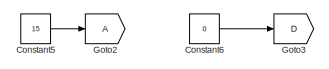
[diagram: root canvas - part 1/4, top center region]
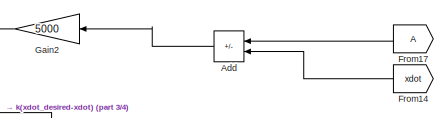
[diagram: root canvas - part 2/4, top center region]
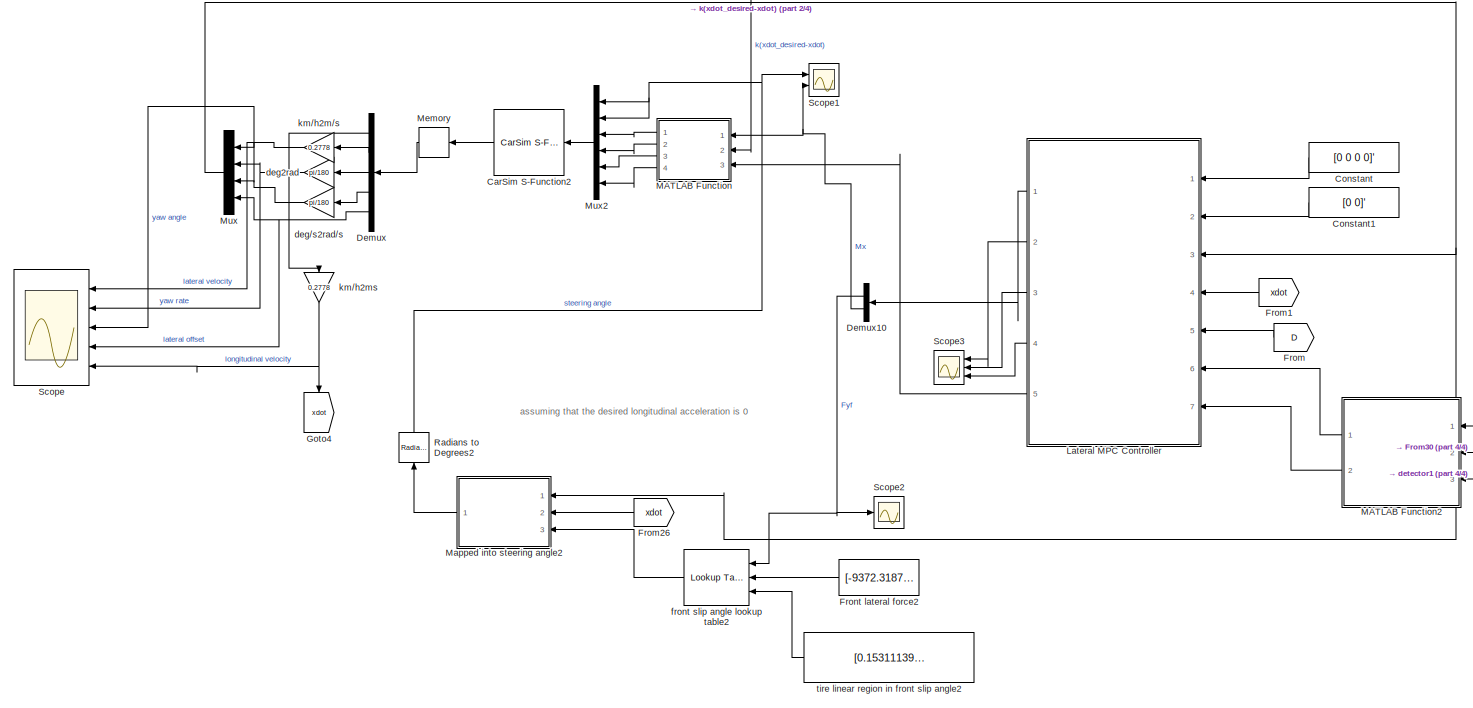
[diagram: root canvas - part 3/4, full width, middle band]
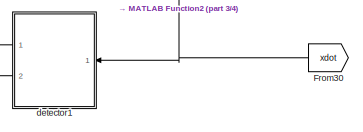
[diagram: root canvas - part 4/4, bottom right region]
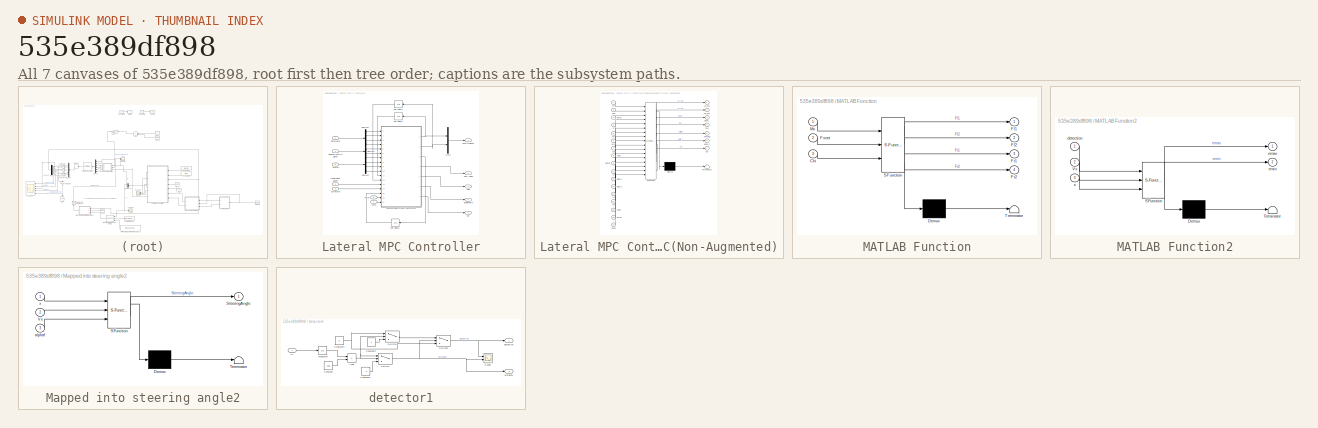
[diagram: thumbnail index - all 7 canvases of the model, root first then tree order]
MODEL slx_535e389df898
KIND model
CONFIG AbsTol = auto
CONFIG EnableMultiTasking = off
CONFIG FixedStep = auto
CONFIG MaxStep = auto
CONFIG MinStep = auto
CONFIG RelTol = 1e-2
CONFIG SampleTimeConstraint = Unconstrained
CONFIG SolverName = VariableStepAuto
CONFIG StartTime = 0.0
CONFIG StopTime = 15
BLOCK [Sum] Add
  IconShape = rectangular
  Inputs = +-
  Ports = [2, 1]
BLOCK [Reference] CarSim S-Function2  REF=Solver_SF/CarSim S-Function2
  AttributesFormatString = Vehicle Code: %<VehicleCode>
  Ports = [1, 1]
  Priority = 1
  SourceBlock = Solver_SF/CarSim S-Function2
  SourceType = Vehicle math model library
BLOCK [Constant] Constant
  Value = [0 0 0 0]'
BLOCK [Constant] Constant1
  Value = [0 0]'
BLOCK [Constant] Constant5
  Value = 15
BLOCK [Constant] Constant6
  Value = 0
BLOCK [Demux] Demux
  Outputs = 5
  Ports = [1, 5]
BLOCK [Demux] Demux10
  Outputs = 2
  Ports = [1, 2]
BLOCK [From] From
  GotoTag = D
BLOCK [From] From1
  GotoTag = xdot
BLOCK [From] From14
  GotoTag = xdot
BLOCK [From] From17
BLOCK [From] From26
  GotoTag = xdot
BLOCK [From] From30
  GotoTag = xdot
BLOCK [Constant] Front lateral force2
  Value = [-9372.31873381295	-9371.87234490745	-9368.75632133124	-9360.32413915416	-9343.95286497491	-9317.04140044534	-9277.00875557097	-9221.29234898623	-9147.34633344744	-9052.63994482675	-8934.65587292915	-8790.88865249026	-8618.84307274575	-8416.03260399439	-8179.97783960505	-7908.20495194422	-7598.24416072470	-7247.62821229778	-6853.89086843106	-6414.56540313147	-5927.18310608872	-5389.27179132790	-47...<+583ch>
BLOCK [Gain] Gain2
  Gain = 5000
BLOCK [Goto] Goto2
BLOCK [Goto] Goto3
  GotoTag = D
BLOCK [Goto] Goto4
  GotoTag = xdot
  NameLocation = left
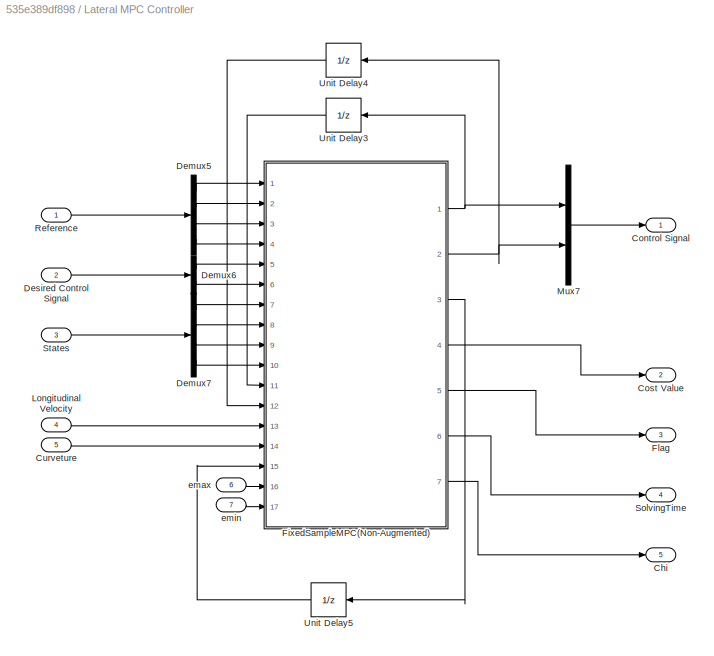
BLOCK [SubSystem] Lateral MPC Controller
  Ports = [7, 5]
  RequestExecContextInheritance = off
BLOCK [Outport] Lateral MPC Controller/Chi
  Port = 5
BLOCK [Outport] Lateral MPC Controller/Control Signal
BLOCK [Outport] Lateral MPC Controller/Cost Value
  Port = 2
BLOCK [Inport] Lateral MPC Controller/Curveture
  Port = 5
BLOCK [Demux] Lateral MPC Controller/Demux5
  Ports = [1, 4]
BLOCK [Demux] Lateral MPC Controller/Demux6
  Outputs = 2
  Ports = [1, 2]
BLOCK [Demux] Lateral MPC Controller/Demux7
  Ports = [1, 4]
BLOCK [Inport] Lateral MPC Controller/Desired Control Signal
  Port = 2
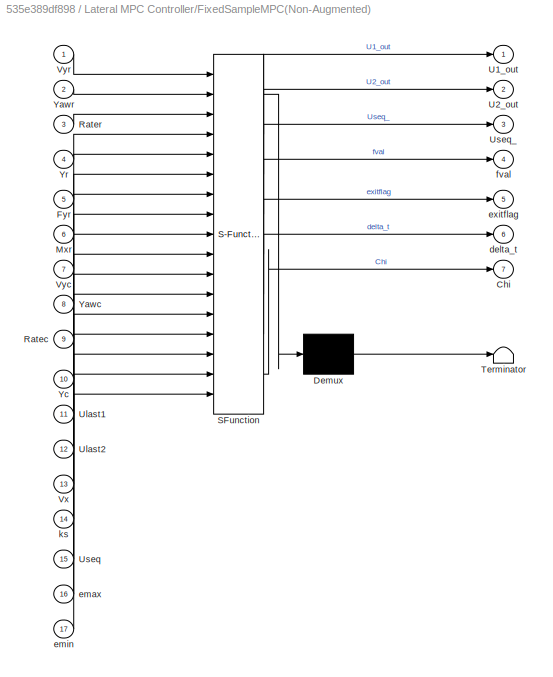
BLOCK [SubSystem] Lateral MPC Controller/FixedSampleMPC(Non-Augmented)
  ErrorFcn = Stateflow.Translate.translate
  PermitHierarchicalResolution = ExplicitOnly
  Ports = [17, 7]
  RequestExecContextInheritance = off
  SFBlockType = MATLAB Function
  TreatAsAtomicUnit = on
BLOCK [Demux] Lateral MPC Controller/FixedSampleMPC(Non-Augmented)/ Demux 
  Outputs = 1
  Ports = [1, 1]
BLOCK [S-Function] Lateral MPC Controller/FixedSampleMPC(Non-Augmented)/ SFunction 
  EnableBusSupport = on
  FunctionName = sf_sfun
  PortCounts = [17 8]
  Ports = [17, 8]
  SFcnIsStateOwnerBlock = off
  SFunctionDeploymentMode = off
  Tag = Stateflow S-Function 9
BLOCK [Terminator] Lateral MPC Controller/FixedSampleMPC(Non-Augmented)/ Terminator 
BLOCK [Outport] Lateral MPC Controller/FixedSampleMPC(Non-Augmented)/Chi
  Port = 7
BLOCK [Inport] Lateral MPC Controller/FixedSampleMPC(Non-Augmented)/Fyr
  Port = 5
BLOCK [Inport] Lateral MPC Controller/FixedSampleMPC(Non-Augmented)/Mxr
  Port = 6
BLOCK [Inport] Lateral MPC Controller/FixedSampleMPC(Non-Augmented)/Ratec
  Port = 9
BLOCK [Inport] Lateral MPC Controller/FixedSampleMPC(Non-Augmented)/Rater
  Port = 3
BLOCK [Outport] Lateral MPC Controller/FixedSampleMPC(Non-Augmented)/U1_out
BLOCK [Outport] Lateral MPC Controller/FixedSampleMPC(Non-Augmented)/U2_out
  Port = 2
BLOCK [Inport] Lateral MPC Controller/FixedSampleMPC(Non-Augmented)/Ulast1
  Port = 11
BLOCK [Inport] Lateral MPC Controller/FixedSampleMPC(Non-Augmented)/Ulast2
  Port = 12
BLOCK [Inport] Lateral MPC Controller/FixedSampleMPC(Non-Augmented)/Useq
  Port = 15
BLOCK [Outport] Lateral MPC Controller/FixedSampleMPC(Non-Augmented)/Useq_
  Port = 3
BLOCK [Inport] Lateral MPC Controller/FixedSampleMPC(Non-Augmented)/Vx
  Port = 13
BLOCK [Inport] Lateral MPC Controller/FixedSampleMPC(Non-Augmented)/Vyc
  Port = 7
BLOCK [Inport] Lateral MPC Controller/FixedSampleMPC(Non-Augmented)/Vyr
BLOCK [Inport] Lateral MPC Controller/FixedSampleMPC(Non-Augmented)/Yawc
  Port = 8
BLOCK [Inport] Lateral MPC Controller/FixedSampleMPC(Non-Augmented)/Yawr
  Port = 2
BLOCK [Inport] Lateral MPC Controller/FixedSampleMPC(Non-Augmented)/Yc
  Port = 10
BLOCK [Inport] Lateral MPC Controller/FixedSampleMPC(Non-Augmented)/Yr
  Port = 4
BLOCK [Outport] Lateral MPC Controller/FixedSampleMPC(Non-Augmented)/delta_t
  Port = 6
BLOCK [Inport] Lateral MPC Controller/FixedSampleMPC(Non-Augmented)/emax
  Port = 16
BLOCK [Inport] Lateral MPC Controller/FixedSampleMPC(Non-Augmented)/emin
  Port = 17
BLOCK [Outport] Lateral MPC Controller/FixedSampleMPC(Non-Augmented)/exitflag
  Port = 5
BLOCK [Outport] Lateral MPC Controller/FixedSampleMPC(Non-Augmented)/fval
  Port = 4
BLOCK [Inport] Lateral MPC Controller/FixedSampleMPC(Non-Augmented)/ks
  Port = 14
BLOCK [Outport] Lateral MPC Controller/Flag
  Port = 3
BLOCK [Inport] Lateral MPC Controller/Longitudinal Velocity
  Port = 4
BLOCK [Mux] Lateral MPC Controller/Mux7
  DisplayOption = bar
  Inputs = 2
  Ports = [2, 1]
BLOCK [Inport] Lateral MPC Controller/Reference
BLOCK [Outport] Lateral MPC Controller/SolvingTime
  Port = 4
BLOCK [Inport] Lateral MPC Controller/States
  Port = 3
BLOCK [UnitDelay] Lateral MPC Controller/Unit Delay3
  HasFrameUpgradeWarning = on
  SampleTime = -1
BLOCK [UnitDelay] Lateral MPC Controller/Unit Delay4
  HasFrameUpgradeWarning = on
  SampleTime = -1
BLOCK [UnitDelay] Lateral MPC Controller/Unit Delay5
  HasFrameUpgradeWarning = on
  InitialCondition = zeros(31,2)
  SampleTime = -1
BLOCK [Inport] Lateral MPC Controller/emax
  Port = 6
BLOCK [Inport] Lateral MPC Controller/emin
  Port = 7
BLOCK [SubSystem] MATLAB Function
  ErrorFcn = Stateflow.Translate.translate
  PermitHierarchicalResolution = ExplicitOnly
  Ports = [3, 4]
  RequestExecContextInheritance = off
  SFBlockType = MATLAB Function
  TreatAsAtomicUnit = on
BLOCK [Demux] MATLAB Function/ Demux 
  Outputs = 1
  Ports = [1, 1]
BLOCK [S-Function] MATLAB Function/ SFunction 
  EnableBusSupport = on
  FunctionName = sf_sfun
  PortCounts = [3 5]
  Ports = [3, 5]
  SFcnIsStateOwnerBlock = off
  SFunctionDeploymentMode = off
  Tag = Stateflow S-Function 16
BLOCK [Terminator] MATLAB Function/ Terminator 
BLOCK [Inport] MATLAB Function/Chi
  Port = 3
BLOCK [Outport] MATLAB Function/Fl1
BLOCK [Outport] MATLAB Function/Fl2
  Port = 2
BLOCK [Outport] MATLAB Function/Fr1
  Port = 3
BLOCK [Outport] MATLAB Function/Fr2
  Port = 4
BLOCK [Inport] MATLAB Function/Fxnet
  Port = 2
BLOCK [Inport] MATLAB Function/Mx
BLOCK [SubSystem] MATLAB Function2
  ErrorFcn = Stateflow.Translate.translate
  PermitHierarchicalResolution = ExplicitOnly
  Ports = [3, 2]
  RequestExecContextInheritance = off
  SFBlockType = MATLAB Function
  TreatAsAtomicUnit = on
BLOCK [Demux] MATLAB Function2/ Demux 
  Outputs = 1
  Ports = [1, 1]
BLOCK [S-Function] MATLAB Function2/ SFunction 
  EnableBusSupport = on
  FunctionName = sf_sfun
  PortCounts = [3 3]
  Ports = [3, 3]
  SFcnIsStateOwnerBlock = off
  SFunctionDeploymentMode = off
  Tag = Stateflow S-Function 2
BLOCK [Terminator] MATLAB Function2/ Terminator 
BLOCK [Inport] MATLAB Function2/Vx
  Port = 2
BLOCK [Inport] MATLAB Function2/detection
BLOCK [Outport] MATLAB Function2/emax
BLOCK [Outport] MATLAB Function2/emin
  Port = 2
BLOCK [Inport] MATLAB Function2/s
  Port = 3
BLOCK [SubSystem] Mapped into steering angle2
  ErrorFcn = Stateflow.Translate.translate
  PermitHierarchicalResolution = ExplicitOnly
  Ports = [3, 1]
  RequestExecContextInheritance = off
  SFBlockType = MATLAB Function
  TreatAsAtomicUnit = on
BLOCK [Demux] Mapped into steering angle2/ Demux 
  Outputs = 1
  Ports = [1, 1]
BLOCK [S-Function] Mapped into steering angle2/ SFunction 
  EnableBusSupport = on
  FunctionName = sf_sfun
  PortCounts = [3 2]
  Ports = [3, 2]
  SFcnIsStateOwnerBlock = off
  SFunctionDeploymentMode = off
  Tag = Stateflow S-Function 13
BLOCK [Terminator] Mapped into steering angle2/ Terminator 
BLOCK [Outport] Mapped into steering angle2/SteeringAngle
BLOCK [Inport] Mapped into steering angle2/Vx
  Port = 2
BLOCK [Inport] Mapped into steering angle2/alphaf
  Port = 3
BLOCK [Inport] Mapped into steering angle2/x
BLOCK [Memory] Memory
  InitialCondition = [54 0 0 0 0]'
BLOCK [Mux] Mux
  DisplayOption = bar
  Ports = [4, 1]
BLOCK [Mux] Mux2
  DisplayOption = bar
  Inputs = 6
  Ports = [6, 1]
BLOCK [Reference] Radians to Degrees2  REF=simulink_extras/Transformations/Radians
to Degrees
  NameLocation = left
  Ports = [1, 1]
  SourceBlock = simulink_extras/Transformations/Radians\nto Degrees
  SourceProductBaseCode = SL
  SourceType = RadiansToDegrees
BLOCK [Scope] Scope
  Floating = off
  NumInputPorts = 5
  Ports = [5]
  ScopeSpecificationString = Simulink.scopes.TimeScopeBlockCfg('CurrentConfiguration', extmgr.ConfigurationSet(extmgr.Configuration('Core','General UI',true),extmgr.Configuration('Core','Source UI',true),extmgr.Configuration('Sources','WiredSimulink',true,'DataLoggingVariableName','ScopeData1'),extmgr.Configuration('Visuals','Time Domain',true,'SerializedDisplays',{struct('MinYLimReal','-0.2911','MaxYLimReal','0.31663','YLabe...<+4831ch>
BLOCK [Scope] Scope1
  Floating = off
  NumInputPorts = 2
  Ports = [2]
  ScopeSpecificationString = Simulink.scopes.TimeScopeBlockCfg('CurrentConfiguration', extmgr.ConfigurationSet(extmgr.Configuration('Core','General UI',true),extmgr.Configuration('Core','Source UI',true),extmgr.Configuration('Sources','WiredSimulink',true,'DataLoggingVariableName','ScopeData2'),extmgr.Configuration('Visuals','Time Domain',true,'SerializedDisplays',{struct('MinYLimReal','-4.81457','MaxYLimReal','4.83983','YLab...<+2050ch>
BLOCK [Scope] Scope2
  Floating = off
  NumInputPorts = 1
  Ports = [1]
  ScopeSpecificationString = Simulink.scopes.TimeScopeBlockCfg('CurrentConfiguration', extmgr.ConfigurationSet(extmgr.Configuration('Core','General UI',true),extmgr.Configuration('Core','Source UI',true),extmgr.Configuration('Sources','WiredSimulink',true,'DataLoggingVariableName','ScopeData1'),extmgr.Configuration('Visuals','Time Domain',true,'SerializedDisplays',{struct('MinYLimReal','-8718.53442','MaxYLimReal','9236.38336'...<+1416ch>
BLOCK [Scope] Scope3
  Floating = off
  NumInputPorts = 3
  Ports = [3]
  ScopeSpecificationString = Simulink.scopes.TimeScopeBlockCfg('CurrentConfiguration', extmgr.ConfigurationSet(extmgr.Configuration('Core','General UI',true),extmgr.Configuration('Core','Source UI',true),extmgr.Configuration('Sources','WiredSimulink',true,'DataLoggingVariableName','ScopeData1'),extmgr.Configuration('Visuals','Time Domain',true,'SerializedDisplays',{struct('MinYLimReal','-540.46424','MaxYLimReal','2128.96004',...<+2845ch>
BLOCK [Gain] deg//s2rad//s
  Gain = pi/180
BLOCK [Gain] deg2rad
  Gain = pi/180
BLOCK [SubSystem] detector1
  Ports = [1, 2]
  RequestExecContextInheritance = off
BLOCK [Sum] detector1/Add1
  IconShape = rectangular
  Inputs = -+
  Ports = [2, 1]
BLOCK [Constant] detector1/Constant
  Value = 105
BLOCK [Constant] detector1/Constant2
  Value = -1
BLOCK [Constant] detector1/Constant4
  Value = 0
BLOCK [Constant] detector1/Constant7
BLOCK [Integrator] detector1/Integrator
  Ports = [1, 1]
BLOCK [Scope] detector1/Scope
  Floating = off
  NumInputPorts = 2
  Ports = [2]
  ScopeSpecificationString = Simulink.scopes.TimeScopeBlockCfg('CurrentConfiguration', extmgr.ConfigurationSet(extmgr.Configuration('Core','General UI',true),extmgr.Configuration('Core','Source UI',true),extmgr.Configuration('Sources','WiredSimulink',true),extmgr.Configuration('Visuals','Time Domain',true,'SerializedDisplays',{struct('MinYLimReal','-0.125','MaxYLimReal','1.125','YLabelReal','','MinYLimMag','0.00000','MaxYLimM...<+1985ch>
BLOCK [Switch] detector1/Switch
  Criteria = u2 > Threshold
  InputSameDT = off
  SaturateOnIntegerOverflow = off
BLOCK [Switch] detector1/Switch1
  Criteria = u2 > Threshold
  InputSameDT = off
  SaturateOnIntegerOverflow = off
  Threshold = 45
BLOCK [Switch] detector1/Switch2
  Criteria = u2 > Threshold
  InputSameDT = off
  SaturateOnIntegerOverflow = off
BLOCK [Inport] detector1/Vx
BLOCK [Outport] detector1/detection
BLOCK [Outport] detector1/distance
  Port = 2
BLOCK [Reference] front slip angle lookup table2  REF=simulink/Lookup
Tables/Lookup
Table
Dynamic
  Ports = [3, 1]
  SourceBlock = simulink/Lookup\nTables/Lookup\nTable\nDynamic
  SourceProductBaseCode = SL
  SourceType = Lookup Table Dynamic
BLOCK [Gain] km//h2m//s
  Gain = 0.2778
  NameLocation = top
BLOCK [Gain] km//h2ms
  Gain = 0.2778
  NameLocation = left
BLOCK [Constant] tire linear region in front slip angle2
  Value = [0.153111393253908	0.147643129209125	0.142174865164343	0.136706601119560	0.131238337074778	0.125770073029996	0.120301808985213	0.114833544940431	0.109365280895648	0.103897016850866	0.0984287528060835	0.0929604887613011	0.0874922247165187	0.0820239606717363	0.0765556966269539	0.0710874325821714	0.0656191685373890	0.0601509044926066	0.0546826404478242	0.0492143764030418	0.0437461123582594	0.03827784...<+677ch>
ANNOTATION (root): assuming that the desired longitudinal acceleration is 0
LINE Add:1 -> Gain2:1
LINE CarSim S-Function2:1 -> Memory:1
LINE Constant1:1 -> Lateral MPC Controller:2
LINE Constant5:1 -> Goto2:1
LINE Constant6:1 -> Goto3:1
LINE Constant:1 -> Lateral MPC Controller:1
NET Demux10:1 -> Scope2:1, front slip angle lookup table2:1
NET Demux10:2 -> MATLAB Function:1, Scope1:2
LINE Demux:1 -> km//h2ms:1
LINE Demux:2 -> km//h2m//s:1
LINE Demux:3 -> deg2rad:1
LINE Demux:4 -> deg//s2rad//s:1
NET Demux:5 -> Mux:4, Scope:4
LINE From14:1 -> Add:2
LINE From17:1 -> Add:1
LINE From1:1 -> Lateral MPC Controller:4
LINE From26:1 -> Mapped into steering angle2:2
NET From30:1 -> MATLAB Function2:2, detector1:1
LINE From:1 -> Lateral MPC Controller:5
LINE Front lateral force2:1 -> front slip angle lookup table2:2
LINE Gain2:1 -> MATLAB Function:2
LINE Lateral MPC Controller/Curveture:1 -> Lateral MPC Controller/FixedSampleMPC(Non-Augmented):14
LINE Lateral MPC Controller/Demux5:1 -> Lateral MPC Controller/FixedSampleMPC(Non-Augmented):1
LINE Lateral MPC Controller/Demux5:2 -> Lateral MPC Controller/FixedSampleMPC(Non-Augmented):2
LINE Lateral MPC Controller/Demux5:3 -> Lateral MPC Controller/FixedSampleMPC(Non-Augmented):3
LINE Lateral MPC Controller/Demux5:4 -> Lateral MPC Controller/FixedSampleMPC(Non-Augmented):4
LINE Lateral MPC Controller/Demux6:1 -> Lateral MPC Controller/FixedSampleMPC(Non-Augmented):5
LINE Lateral MPC Controller/Demux6:2 -> Lateral MPC Controller/FixedSampleMPC(Non-Augmented):6
LINE Lateral MPC Controller/Demux7:1 -> Lateral MPC Controller/FixedSampleMPC(Non-Augmented):7
LINE Lateral MPC Controller/Demux7:2 -> Lateral MPC Controller/FixedSampleMPC(Non-Augmented):8
LINE Lateral MPC Controller/Demux7:3 -> Lateral MPC Controller/FixedSampleMPC(Non-Augmented):9
LINE Lateral MPC Controller/Demux7:4 -> Lateral MPC Controller/FixedSampleMPC(Non-Augmented):10
LINE Lateral MPC Controller/Desired Control Signal:1 -> Lateral MPC Controller/Demux6:1
NET Lateral MPC Controller/FixedSampleMPC(Non-Augmented):1 -> Lateral MPC Controller/Mux7:1, Lateral MPC Controller/Unit Delay3:1
NET Lateral MPC Controller/FixedSampleMPC(Non-Augmented):2 -> Lateral MPC Controller/Mux7:2, Lateral MPC Controller/Unit Delay4:1
LINE Lateral MPC Controller/FixedSampleMPC(Non-Augmented):3 -> Lateral MPC Controller/Unit Delay5:1
LINE Lateral MPC Controller/FixedSampleMPC(Non-Augmented):4 -> Lateral MPC Controller/Cost Value:1
LINE Lateral MPC Controller/FixedSampleMPC(Non-Augmented):5 -> Lateral MPC Controller/Flag:1
LINE Lateral MPC Controller/FixedSampleMPC(Non-Augmented):6 -> Lateral MPC Controller/SolvingTime:1
LINE Lateral MPC Controller/FixedSampleMPC(Non-Augmented):7 -> Lateral MPC Controller/Chi:1
LINE Lateral MPC Controller/Longitudinal Velocity:1 -> Lateral MPC Controller/FixedSampleMPC(Non-Augmented):13
LINE Lateral MPC Controller/Mux7:1 -> Lateral MPC Controller/Control Signal:1
LINE Lateral MPC Controller/Reference:1 -> Lateral MPC Controller/Demux5:1
LINE Lateral MPC Controller/States:1 -> Lateral MPC Controller/Demux7:1
LINE Lateral MPC Controller/Unit Delay3:1 -> Lateral MPC Controller/FixedSampleMPC(Non-Augmented):11
LINE Lateral MPC Controller/Unit Delay4:1 -> Lateral MPC Controller/FixedSampleMPC(Non-Augmented):12
LINE Lateral MPC Controller/Unit Delay5:1 -> Lateral MPC Controller/FixedSampleMPC(Non-Augmented):15
LINE Lateral MPC Controller/emax:1 -> Lateral MPC Controller/FixedSampleMPC(Non-Augmented):16
LINE Lateral MPC Controller/emin:1 -> Lateral MPC Controller/FixedSampleMPC(Non-Augmented):17
LINE Lateral MPC Controller:1 -> Demux10:1
LINE Lateral MPC Controller:2 -> Scope3:1
LINE Lateral MPC Controller:3 -> Scope3:2
LINE Lateral MPC Controller:4 -> Scope3:3
LINE Lateral MPC Controller:5 -> MATLAB Function:3
LINE MATLAB Function2:1 -> Lateral MPC Controller:6
LINE MATLAB Function2:2 -> Lateral MPC Controller:7
LINE MATLAB Function:1 -> Mux2:3
LINE MATLAB Function:2 -> Mux2:4
LINE MATLAB Function:3 -> Mux2:5
LINE MATLAB Function:4 -> Mux2:6
LINE Mapped into steering angle2:1 -> Radians to Degrees2:1
LINE Memory:1 -> Demux:1
LINE Mux2:1 -> CarSim S-Function2:1
NET Mux:1 -> Lateral MPC Controller:3, Mapped into steering angle2:1
NET Radians to Degrees2:1 -> Mux2:1, Mux2:2, Scope1:1
NET deg//s2rad//s:1 -> Mux:3, Scope:3
NET deg2rad:1 -> Mux:2, Scope:2
NET detector1/Add1:1 -> detector1/Switch1:2, detector1/Switch:1, detector1/Switch:2
LINE detector1/Constant2:1 -> detector1/Switch:3
NET detector1/Constant4:1 -> detector1/Switch1:1, detector1/Switch2:3
LINE detector1/Constant7:1 -> detector1/Switch1:3
LINE detector1/Constant:1 -> detector1/Add1:2
LINE detector1/Integrator:1 -> detector1/Add1:1
LINE detector1/Switch1:1 -> detector1/Switch2:1
NET detector1/Switch2:1 -> detector1/Scope:1, detector1/detection:1
NET detector1/Switch:1 -> detector1/Scope:2, detector1/Switch2:2, detector1/distance:1
LINE detector1/Vx:1 -> detector1/Integrator:1
LINE detector1:1 -> MATLAB Function2:1
LINE detector1:2 -> MATLAB Function2:3
LINE front slip angle lookup table2:1 -> Mapped into steering angle2:3
NET km//h2m//s:1 -> Mux:1, Scope:1
NET km//h2ms:1 -> Goto4:1, Scope:5
LINE tire linear region in front slip angle2:1 -> front slip angle lookup table2:3
note: NET lines group one-source signal fan-out (src -> all destinations, sorted); 1:1 wires keep LINE
CHART MATLAB Function2 states=1 transitions=1
  STATE_LABEL 'eML_blk_kernel()'
  STATE_LABEL 'SCRIPT:\nfunction [emax,emin] = fcn(detection,Vx,s)\nPredictionHorizon=30;\nTs=0.1;\nk = round(s/Vx/Ts);\nif k>PredictionHorizon\n    k =PredictionHorizon;\nelseif k<20\n    k=20;\nend\n\nif detection == 1\n    emin = -10*ones(PredictionHorizon,1);\n    emax=   10*ones(PredictionHorizon,1);\n    k1=k-round(3/Vx/Ts);\n    k2=k+round(3/Vx/Ts);\n    if k1<1\n        k1=1;\n    end\n    if k2>PredictionHorizon\n        k...<+154ch>'
CHART Lateral MPC Controller/FixedSampleMPC(Non-Augmented) states=1 transitions=1
  STATE_LABEL 'eML_blk_kernel()'
  STATE_LABEL "SCRIPT:\nfunction [U1_out,U2_out,Useq_,fval,exitflag,delta_t,Chi] = fcn(Vyr,Yawr,Rater,Yr, Fyr,Mxr,Vyc,Yawc,Ratec,Yc,Ulast1,Ulast2,Vx,ks,Useq,emax,emin)\n%Vyr lateral velocity, Yawr yaw angle, Rater yaw rate, Yr lateral position\n%Fyr lateral force in front tyre,Mxr moment generated by longitudinal force\n%'r'means reference ||  'c'means current\n    if Vx<0.1\n        Vx=0.001;%make sure many expressio...<+3608ch>"
CHART Mapped into steering angle2 states=1 transitions=1
  STATE_LABEL 'eML_blk_kernel()'
  STATE_LABEL 'SCRIPT:\nfunction SteeringAngle = fcn(x,Vx, alphaf)\n\nlf = 1.11;  % distance from front axle to the mass center\n\nVy = x(1); %lateral velocity\nr = x(2);  %yaw rate\nSteeringAngle = Vy/Vx+lf*r/Vx-alphaf;\n\n'
CHART MATLAB Function states=1 transitions=1
  STATE_LABEL 'eML_blk_kernel()'
  STATE_LABEL 'SCRIPT:\nfunction [Fl1,Fl2,Fr1,Fr2] = fcn(Mx,Fxnet,Chi)\nEta_e=0.5; % the ratio of the allocated brakes on the front axle when Chi=1\nEta_f=0.7; % the ratio of the allocated brakes on the front axle when Chi=0\nEta=Eta_f-Chi*(Eta_f-Eta_e);\nw = 1.875; % the width of the car\n\nFwf = zeros(2,1);\nFwr = zeros(2,1);\n\nif Mx > 0\n    Fwf(1) = Fxnet/2+0;\n    Fwf(2) = Fxnet/2-Eta*2*Mx/w;\n    Fwr(1) = 0;\n    Fwr(2...<+282ch>'
CHART  states=0 transitions=0
CHART  states=0 transitions=0
CHART  states=0 transitions=0
CHART  states=0 transitions=0
